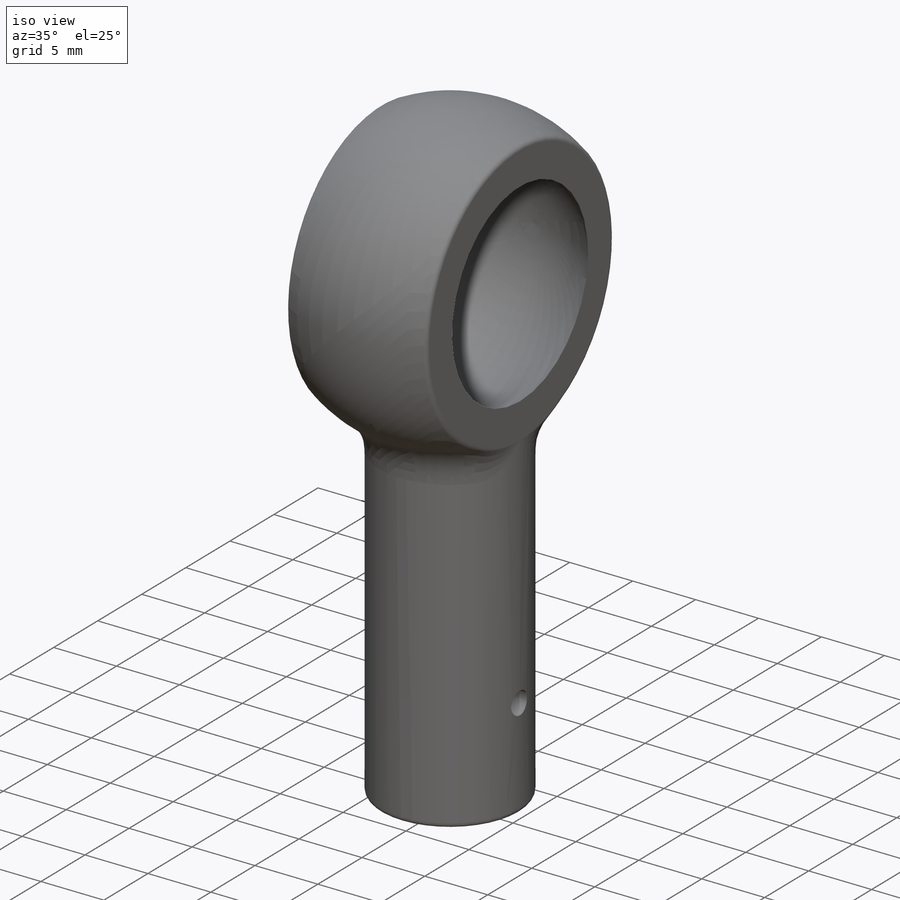
[diagram: iso view]
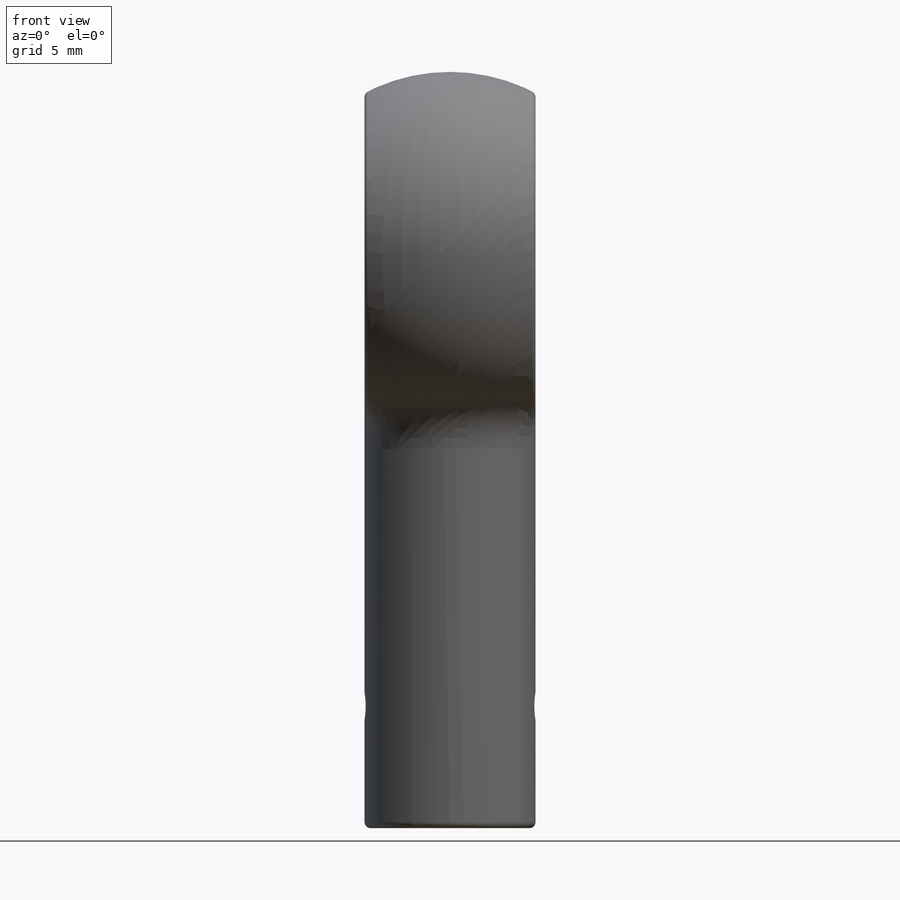
[diagram: front view]
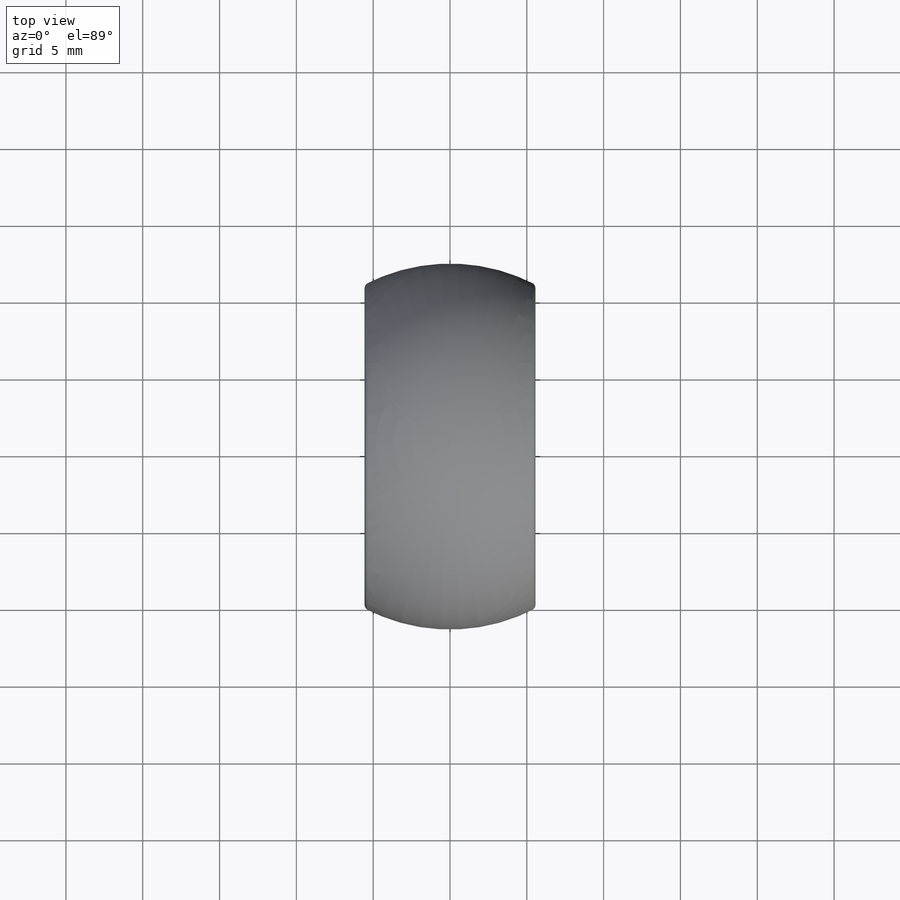
[diagram: top view]
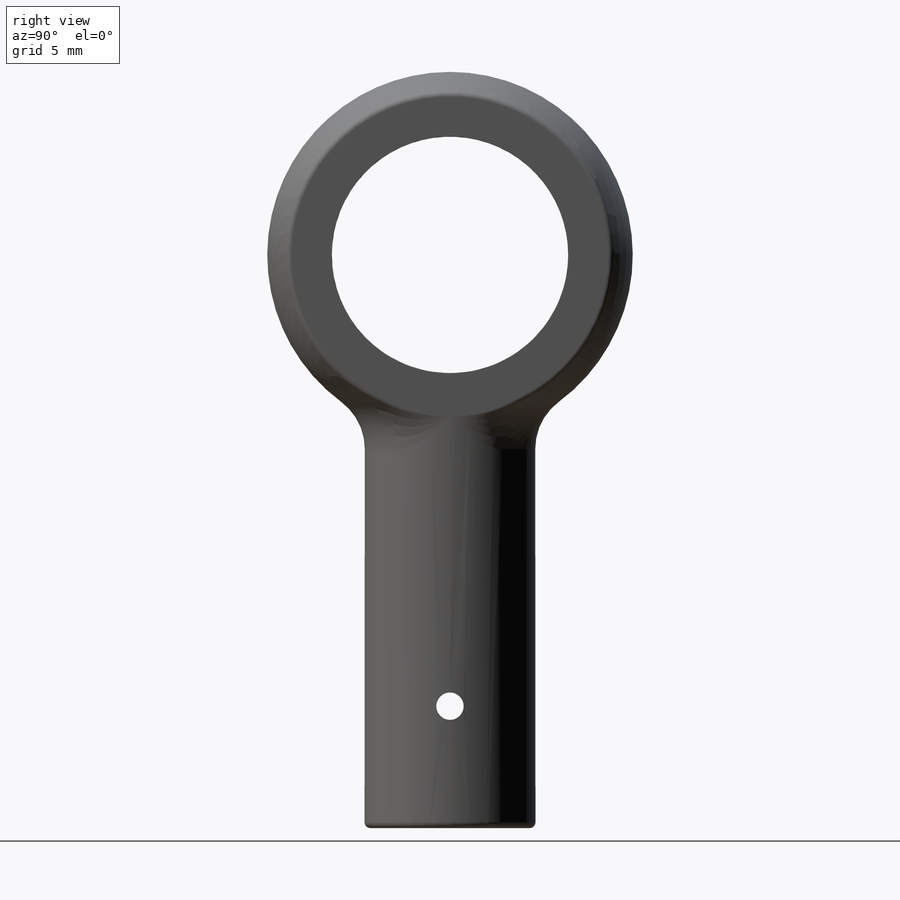
[diagram: right view]
SOLIDWORKS PART (.sldprt)
format: sldprt  version: not decoded by parser v0  size: 961,024 bytes
history: native  units: mm
features: sketch x8, hole x2, fillet x2, material x1, revolve x1, cut_extrude x1, extrude x1, cut_revolve x1 (+13 scaffold rows collapsed)
feature tree (30):
  scaffold x13  (default folders/planes/origin — collapsed)
  material  "AISI 1020"
  sketch  "Sketch1"  dims[c1.D2=23.8252mm c1.D9=1.27mm c1.D1=37.3126mm c1.D3=11.1252mm c1.D4=7.9502mm c1.D5=19.05mm c1.D6=2.54mm c1.D7=19.8374mm c2.D7=118.0deg c2.D8=7.9375mm c2.D10=1.905mm c2.D4=19.05mm c2.D5=5.461mm]
  revolve  "Revolve1"  Angle=360deg
  sketch  "Sketch2"  dims[c1.D4=2.54mm c1.D1=11.1252mm c1.D2=~1.364154mm c2.D2=45.0deg c2.D3=4.826mm c2.D1=11.1252mm]
  cut_extrude  "Extrude1"  [1 undecoded]
  sketch  "Sketch3"  dims[D1=8.763mm]
  extrude  "Extrude2"  Depth=7.5311mm
  hole  "#11 (0.191) Diameter Hole1"  Diameter=6.35mm Depth=15.0622mm
  sketch  "Sketch5"
  sketch  "Sketch4"  dims[hole-wizard template sketch: 46 standard entries collapsed; hole parameters kept: c15.Thru Hole Dia.=6.35mm c15.Thru Hole Depth=15.0622mm c15.Near C'Sink Dia.=~6.68421mm c15.D4=~3.666174mm c15.Near C'Sink Angle=90.0deg c15.Far C'Sink Dia.=~6.68421mm c15.D6=~9.919017mm c15.Far C'Sink Angle=90.0deg]
  fillet  "Fillet2"  Radius=3.81mm
  fillet  "Fillet1"  Radius=0.381mm
  sketch  "Sketch6"  dims[D1=18.9738mm D2=0.0254mm]
  cut_revolve  "Cut-Revolve1"  Angle=360deg
  hole  "#50 (0.07) Diameter Hole1"  Diameter=1.778mm Depth=13.0937mm
  sketch  "Sketch8"  dims[D1=7.9375mm]
  sketch  "Sketch7"  dims[hole-wizard template sketch: 59 standard entries collapsed; hole parameters kept: c18.Thru Hole Dia.=1.778mm c18.Thru Hole Depth=13.0937mm]
decode coverage: 14 of 16 modeling features carry decoded parameters
note: ~ marks probable driven/reference dimensions
note: 1 parameter value undecoded
note: suppression state not decoded; provenance and decode notes live in map.json
